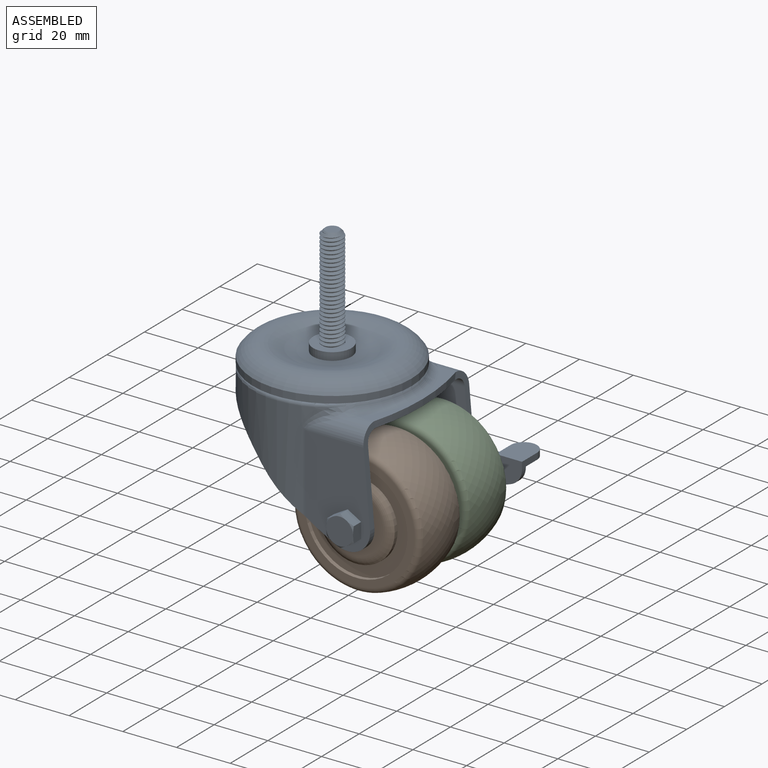
[diagram: assembled view]
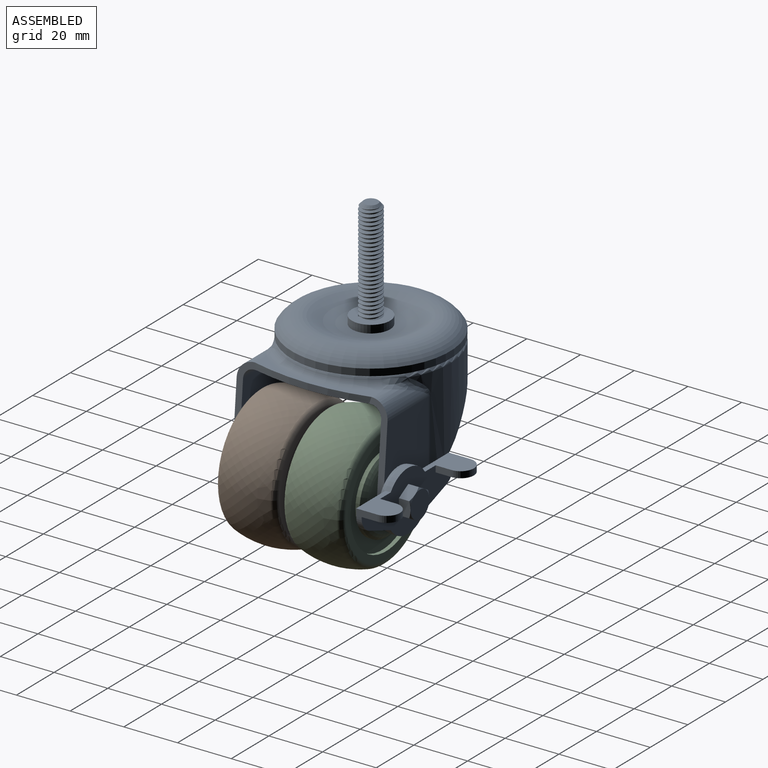
[diagram: assembled view, second angle]
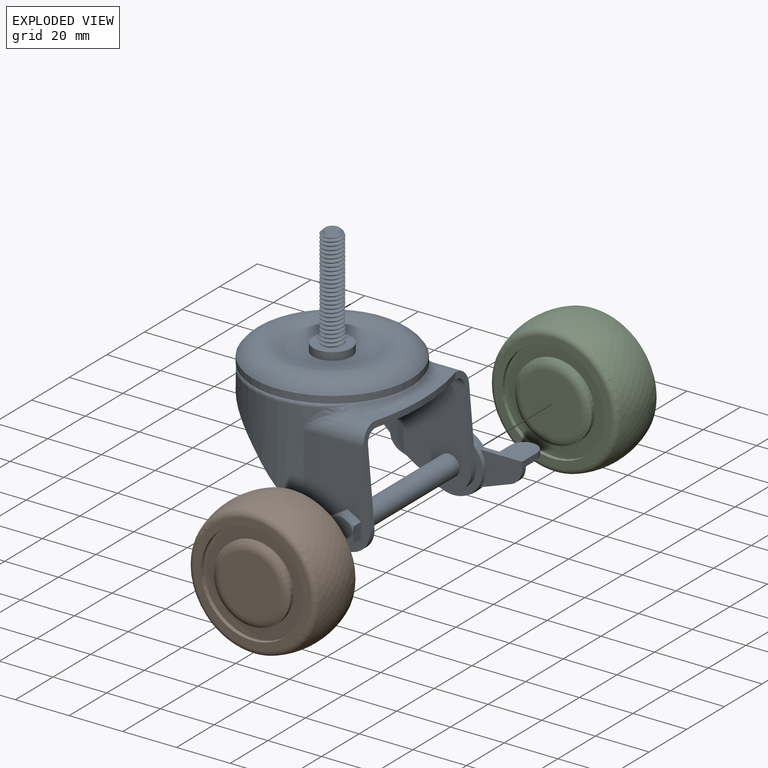
[diagram: exploded view]
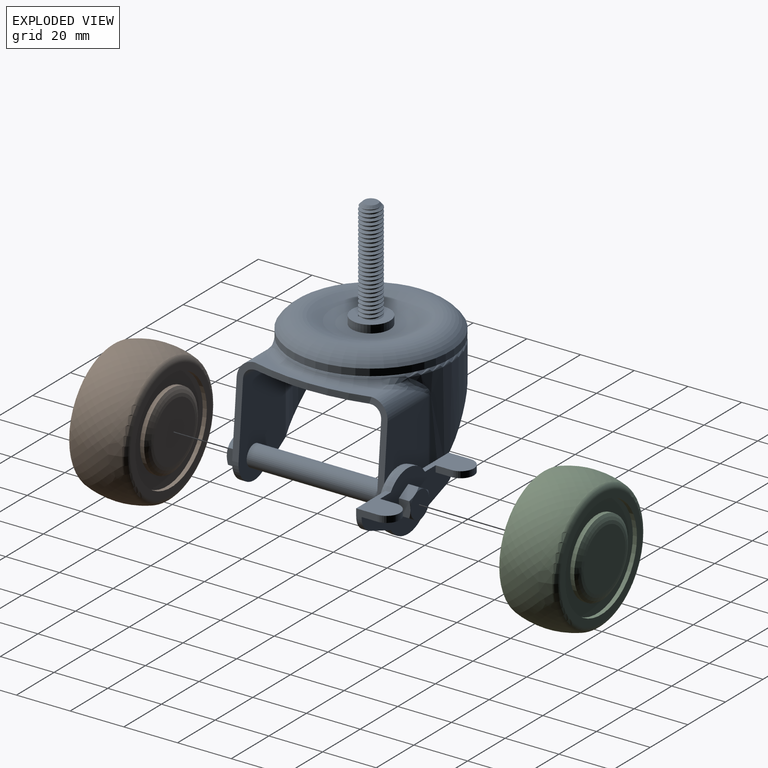
[diagram: exploded view, second angle]
ASSEMBLY  parts=3 mates=2
PART A: 93 faces, bbox 83.9x76.2x94.1 mm
  f0: cylinder r=7.14mm len=14.29mm, axis (0,0,1), area 130mm2, adj f1,f86
  f1: torus R=7.14mm, axis (0,0,1), area 922.5mm2, adj f0,f2
  f2: torus R=21.77mm, axis (0,0,1), area 1956.3mm2, adj f1,f3
  f3: cylinder r=29.5mm len=58.99mm, axis (0,0,1), area 470.8mm2, adj f2,f85
  f4: cone r=2.56mm half-angle=45deg, axis (0,0,-1), area 26.1mm2, adj f5,f87,f90,f91,f92
  f5: cylinder r=3.97mm len=36.69mm, axis (0,0,1), area 114.4mm2, adj f4,f86,f90,f91
  f6: cylinder r=3.97mm len=51.44mm, axis (0,-1,0), area 1282.6mm2, adj f28,f29
  f7: cylinder r=27.12mm len=54.24mm, axis (0,0,1), area 1880.2mm2, adj f28,f29,f49,f52,f53,f55,f56,f57
  f8: torus R=27.97mm, axis (0,0,1), area 401.7mm2, adj f9,f62,f63,f64,f85
  f9: cylinder r=29.5mm len=58.99mm, axis (0,0,1), area 1776.9mm2, adj f8,f49,f52,f53,f60,f61,f65,f66
  f10: cone r=11.11mm half-angle=10deg, axis (0,1,0), area 98.5mm2, adj f36,f37,f38,f41,f43,f44
  f11: cylinder r=3.97mm len=7.94mm, axis (0,-1,0), area 4mm2, adj f12,f26
  f12: plane 11.55x10mm, normal (0,-1,0), area 37.1mm2, adj f11,f13,f14,f15,f16,f17,f18
  f13: plane 5.48x4.79mm, normal (0.5,0,-0.87), area 24mm2, adj f12,f14,f18,f19,f20
  f14: plane 6.25x4.79mm, normal (1,0,0), area 24mm2, adj f12,f13,f15,f19,f24
  f15: plane 5.48x4.79mm, normal (0.5,0,0.87), area 24mm2, adj f12,f14,f16,f23,f24
  f16: plane 5.48x4.79mm, normal (-0.5,0,0.87), area 24.1mm2, adj f12,f15,f17,f22,f23
  f17: plane 6.25x4.79mm, normal (-1,0,0), area 24mm2, adj f12,f16,f18,f21,f22
  f18: plane 5.48x4.79mm, normal (-0.5,0,-0.87), area 24mm2, adj f12,f13,f17,f20,f21
  f19: cone r=5mm half-angle=60deg, axis (0,-1,0), area 2.5mm2, adj f13,f14,f25
  f20: cone r=5mm half-angle=60deg, axis (0,-1,0), area 2.5mm2, adj f13,f18,f25
  f21: cone r=5mm half-angle=60deg, axis (0,-1,0), area 2.5mm2, adj f17,f18,f25
  f22: cone r=5mm half-angle=60deg, axis (0,-1,0), area 2.5mm2, adj f16,f17,f25
  f23: cone r=5mm half-angle=60deg, axis (0,-1,0), area 2.5mm2, adj f15,f16,f25
  f24: cone r=5mm half-angle=60deg, axis (0,-1,0), area 2.5mm2, adj f14,f15,f25
  f25: plane 10x10mm, normal (0,1,0), area 78.6mm2, adj f19,f20,f21,f22,f23,f24
  f26: plane 49.19x22.23mm, normal (0,1,0), area 557mm2, adj f11,f30,f31,f32,f33,f34,f35,f38
  f27: plane 36.4x24.14mm, normal (0,-1,0), area 694.9mm2, adj f48,f51,f52,f54,f60,f79,f80,f81
  f28: plane 36.4x25.12mm, normal (0,-1,0), area 760mm2, adj f6,f7,f45,f50,f53,f56
  f29: plane 36.4x25.12mm, normal (0,1,0), area 760mm2, adj f6,f7,f51,f52,f54,f57
  f30: plane 15.47x12.85mm, normal (0,0,1), area 127.5mm2, adj f26,f32,f38,f39,f43,f69
  f31: plane 10.82x9.84mm, normal (0,0,-1), area 96.1mm2, adj f26,f32,f39,f69
  f32: plane 5.9x2.38mm, normal (-1,0,0), area 14mm2, adj f26,f30,f31,f69
  f33: plane 7.93x2.67mm, normal (-1,0,0), area 19.4mm2, adj f26,f34,f35,f37,f68,f70
  f34: plane 15.47x12.85mm, normal (0,0,1), area 127.5mm2, adj f26,f33,f37,f38,f67,f68
  f35: plane 10.82x9.84mm, normal (0,0,-1), area 96.1mm2, adj f26,f33,f67,f68
  f36: plane 20.79x18.54mm, normal (0,-1,0), area 75.1mm2, adj f10,f45,f50,f53
  f37: plane 15.47x12.7mm, normal (0,-1,0), area 132.6mm2, adj f10,f33,f34,f42,f70
  f38: cylinder r=11.11mm len=18.24mm, axis (0,-1,0), area 43.5mm2, adj f10,f26,f30,f34
  f39: plane 7.93x2.67mm, normal (1,0,0), area 19.4mm2, adj f26,f30,f31,f43,f69,f71
  f40: plane 11.27x4.05mm, normal (0.34,0,-0.94), area 24.3mm2, adj f26,f41,f43,f71
  f41: cylinder r=11.11mm len=18.24mm, axis (0,-1,0), area 43.5mm2, adj f10,f26,f40,f42
  f42: plane 11.27x4.05mm, normal (-0.34,0,-0.94), area 24.3mm2, adj f26,f37,f41,f70
  f43: plane 15.47x12.7mm, normal (0,-1,0), area 132.6mm2, adj f10,f30,f39,f40,f71
  f44: plane 32.48x23.5mm, normal (0,1,0), area 485.8mm2, adj f10,f45,f47,f53,f66
  f45: plane 33.92x7.35mm, normal (1,0,0.09), area 85.4mm2, adj f28,f36,f44,f47,f50,f56,f58,f59
  f46: plane 43.49x8.95mm, normal (0,0,1), area 102.5mm2, adj f47,f48,f59,f63
  f47: cylinder r=6.35mm len=21.72mm, axis (-1,0,0), area 139.4mm2, adj f44,f45,f46,f64,f65
  f48: cylinder r=6.35mm len=21.72mm, axis (-1,0,0), area 139.4mm2, adj f27,f46,f54,f61,f62
  f49: cylinder r=77.91mm len=57.82mm, axis (0,1,0), area 226.3mm2, adj f7,f9,f52,f53
  f50: cylinder r=8.33mm len=11.64mm, axis (0,1,0), area 40.9mm2, adj f28,f36,f45,f53
  f51: cylinder r=8.33mm len=11.64mm, axis (0,1,0), area 40.9mm2, adj f27,f29,f52,f54
  f52: cylinder r=77.91mm len=27.97mm, axis (0,1,0), area 84.1mm2, adj f7,f9,f27,f29,f49,f51,f60
  f53: cylinder r=77.91mm len=27.97mm, axis (0,1,0), area 84.1mm2, adj f7,f9,f28,f36,f44,f49,f50,f66
  f54: plane 33.92x7.35mm, normal (1,0,0.09), area 85.4mm2, adj f27,f29,f48,f51,f57,f58,f59
  f55: plane 54.24x54.24mm, normal (0,0,-1), area 2311mm2, adj f7
  f56: cylinder r=3.98mm len=22.7mm, axis (-1,0,0), area 116.9mm2, adj f7,f28,f45,f58
  f57: cylinder r=3.98mm len=22.7mm, axis (-1,0,0), area 116.9mm2, adj f7,f29,f54,f58
  f58: plane 43.49x17.49mm, normal (0,0,-1), area 386.6mm2, adj f7,f45,f54,f56,f57,f59
  f59: cylinder r=81.66mm len=43.49mm, axis (0,0,1), area 102.6mm2, adj f45,f46,f54,f58
  f60: cylinder r=3.96mm len=28.9mm, axis (0,0,1), area 32.9mm2, adj f9,f27,f52,f61
  f61: bspline ~9.48x8mm, area 27.2mm2, adj f9,f48,f60,f62
  f62: bspline ~8.95x6.38mm, area 32.1mm2, adj f8,f48,f61,f63
  f63: torus R=32.95mm, axis (0,0,-1), area 200.7mm2, adj f8,f46,f62,f64
  f64: bspline ~8.95x6.38mm, area 32.1mm2, adj f8,f47,f63,f65
  f65: bspline ~9.48x8mm, area 27.2mm2, adj f9,f47,f64,f66
  f66: cylinder r=3.96mm len=28.9mm, axis (0,0,1), area 32.9mm2, adj f9,f44,f53,f65
  f67: plane 5.9x2.38mm, normal (1,0,0), area 14mm2, adj f26,f34,f35,f68
  f68: cylinder r=4.92mm len=9.84mm, axis (0,0,1), area 36.7mm2, adj f33,f34,f35,f67
  f69: cylinder r=4.92mm len=9.84mm, axis (0,0,1), area 36.7mm2, adj f30,f31,f32,f39
  f70: cylinder r=6.35mm len=5.98mm, axis (0,-1,0), area 15.8mm2, adj f26,f33,f37,f42
  f71: cylinder r=6.35mm len=5.98mm, axis (0,-1,0), area 15.8mm2, adj f26,f39,f40,f43
  f72: plane 10x10mm, normal (0,-1,0), area 78.6mm2, adj f73,f74,f75,f76,f77,f78
  f73: cone r=5mm half-angle=60deg, axis (0,1,0), area 2.5mm2, adj f72,f83,f84
  f74: cone r=5mm half-angle=60deg, axis (0,1,0), area 2.5mm2, adj f72,f82,f83
  f75: cone r=5mm half-angle=60deg, axis (0,1,0), area 2.5mm2, adj f72,f81,f82
  f76: cone r=5mm half-angle=60deg, axis (0,1,0), area 2.5mm2, adj f72,f80,f81
  f77: cone r=5mm half-angle=60deg, axis (0,1,0), area 2.5mm2, adj f72,f79,f84
  f78: cone r=5mm half-angle=60deg, axis (0,1,0), area 2.5mm2, adj f72,f79,f80
  f79: plane 5.48x4.79mm, normal (-0.5,0,-0.87), area 24mm2, adj f27,f77,f78,f80,f84
  f80: plane 6.25x4.79mm, normal (-1,0,0), area 24mm2, adj f27,f76,f78,f79,f81
  f81: plane 5.48x4.79mm, normal (-0.5,0,0.87), area 24mm2, adj f27,f75,f76,f80,f82
  f82: plane 5.48x4.79mm, normal (0.5,0,0.87), area 24mm2, adj f27,f74,f75,f81,f83
  f83: plane 6.25x4.79mm, normal (1,0,0), area 24.1mm2, adj f27,f73,f74,f82,f84
  f84: plane 5.48x4.79mm, normal (0.5,0,-0.87), area 24.1mm2, adj f27,f73,f77,f79,f83
  f85: plane 58.99x58.99mm, normal (0,0,-1), area 275.2mm2, adj f3,f8
  f86: plane 14.29x14.29mm, normal (0,0,1), area 110.8mm2, adj f0,f5,f88
  f87: plane 5.12x5.12mm, normal (0,0,1), area 20.6mm2, adj f4
  f88: cylinder r=3.97mm len=7.94mm, axis (0,0,-1), area 21.2mm2, adj f86,f89,f90,f91
  f89: plane 1.23x0.65mm, normal (-0.71,-0.71,0), area 0.6mm2, adj f88,f90,f91,f92
  f90: bspline ~39.33x7.94mm, area 636.3mm2, adj f4,f5,f88,f89,f92
  f91: bspline ~38.98x7.94mm, area 604.2mm2, adj f4,f5,f88,f89,f92
  f92: cylinder r=3.05mm len=38.66mm, axis (0,0,-1), area 196.6mm2, adj f4,f89,f90,f91
PART B: 15 faces, bbox 52x24.8x52 mm
  f0: cylinder r=14.29mm len=28.58mm, axis (0,1,0), area 136.8mm2, adj f8,f14
  f1: cylinder r=19.05mm len=38.1mm, axis (0,1,0), area 182.4mm2, adj f13,f14
  f2: torus R=21.72mm, axis (0,1,0), area 414.7mm2, adj f3,f13
  f3: revolved ~50.8x50.8mm, area 3031.7mm2, adj f2,f4
  f4: torus R=21.72mm, axis (0,1,0), area 414.7mm2, adj f3,f12
  f5: cylinder r=19.05mm len=38.1mm, axis (0,1,0), area 182.4mm2, adj f11,f12
  f6: cylinder r=14.29mm len=28.58mm, axis (0,1,0), area 136.8mm2, adj f7,f11
  f7: torus R=11.11mm, axis (0,1,0), area 281.4mm2, adj f6,f10
  f8: torus R=11.11mm, axis (0,1,0), area 281.4mm2, adj f0,f9
  f9: plane 22.23x22.23mm, normal (0,-1,0), area 387.9mm2, adj f8
  f10: plane 22.23x22.23mm, normal (0,1,0), area 387.9mm2, adj f7
  f11: plane 38.1x38.1mm, normal (0,1,0), area 498.8mm2, adj f5,f6
  f12: plane 43.43x43.43mm, normal (0,1,0), area 341.6mm2, adj f4,f5
  f13: plane 43.43x43.43mm, normal (0,-1,0), area 341.6mm2, adj f1,f2
  f14: plane 38.1x38.1mm, normal (0,-1,0), area 498.8mm2, adj f0,f1
PART C: same geometry as B
PLACE A at identity
PLACE B t=(0,-25.08,0)mm
PLACE C t=(0,-0.32,0)mm
MATE fastened C.f0 <-> A.f6  axis (0,-1,0) through (25.4,0,-37.59)mm
MATE fastened B.f0 <-> A.f6  axis (0,1,0) through (25.4,0,-37.59)mm
